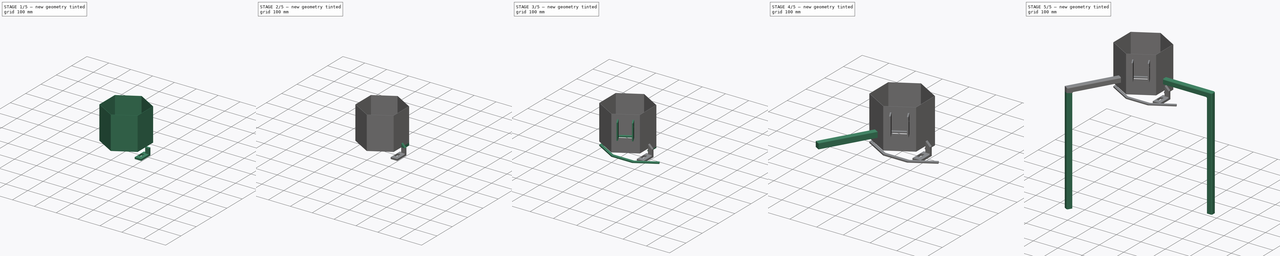
[diagram: build sequence overview — one tinted view per stage of 5, left to right]
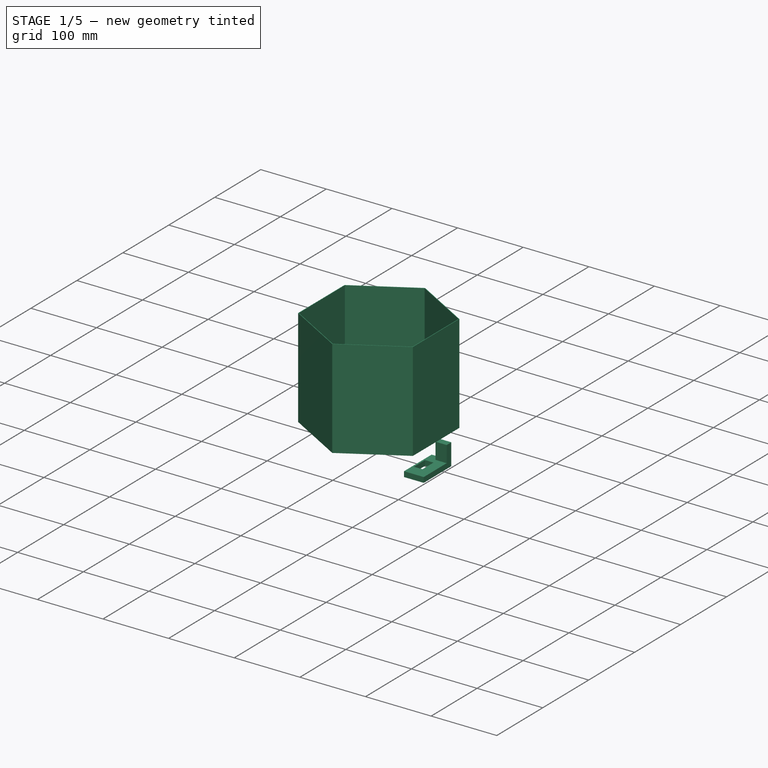
[diagram: stage 1 of 5 — iso view after this stage's code; geometry added in this stage tinted green]
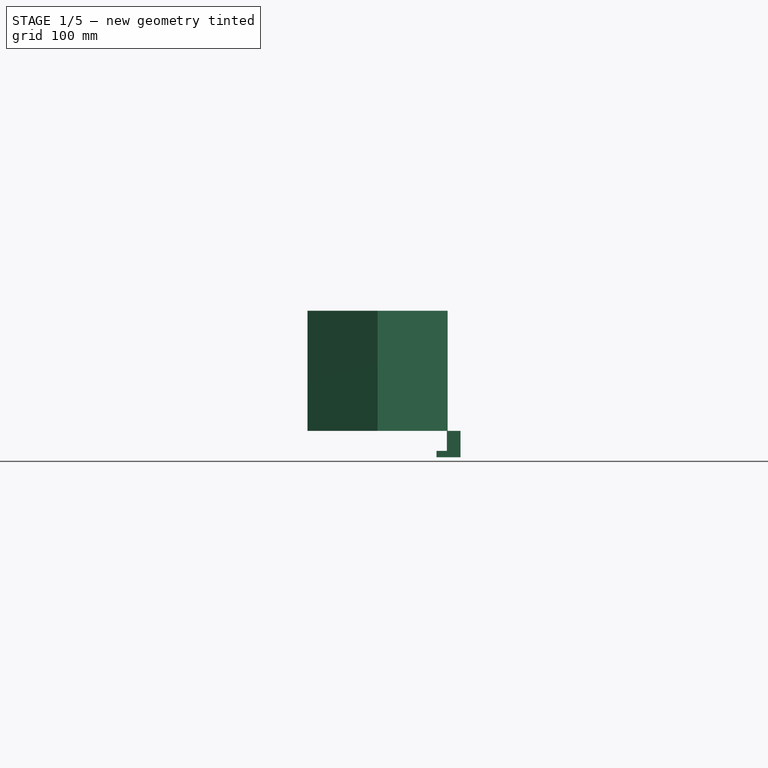
[diagram: stage 1 of 5 — front view after this stage's code; geometry added in this stage tinted green]
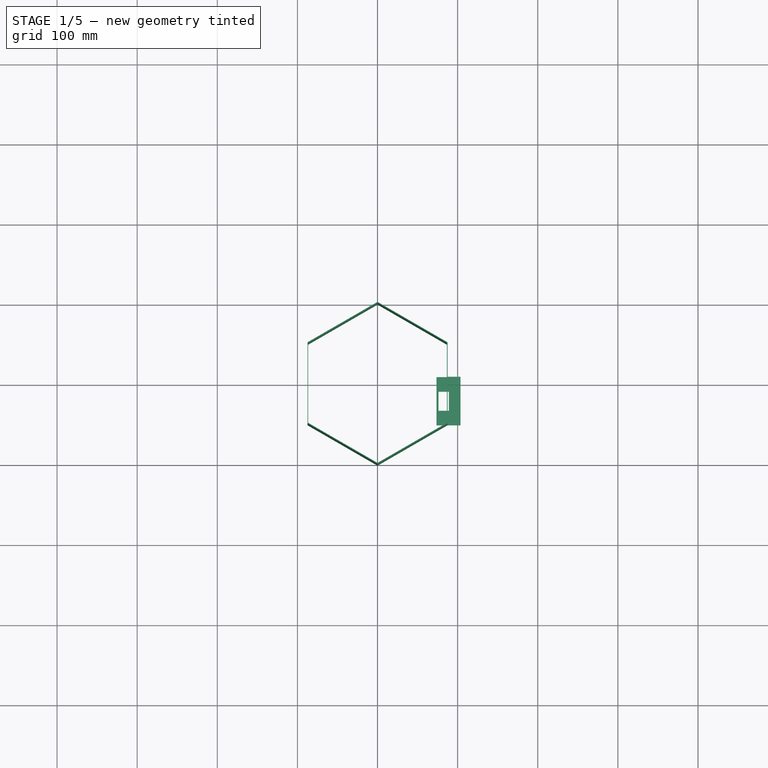
[diagram: stage 1 of 5 — top view after this stage's code; geometry added in this stage tinted green]
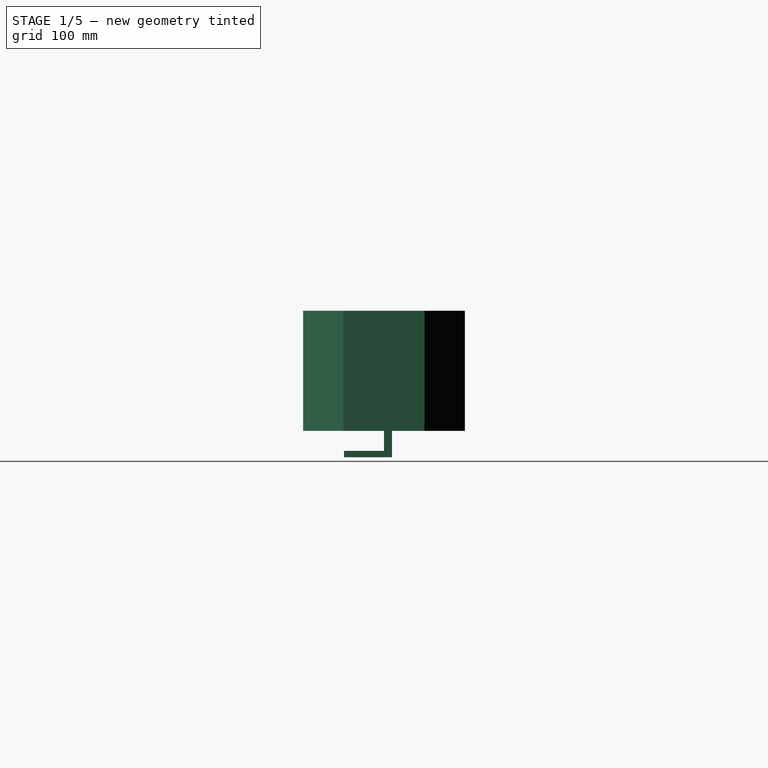
[diagram: stage 1 of 5 — right view after this stage's code; geometry added in this stage tinted green]
FCSTD DOCUMENT  (FreeCAD 0.20R29177 +426 (Git))
Label: ImageRecogBox
License: All rights reserved
LicenseURL: http://en.wikipedia.org/wiki/All_rights_reserved
objects: Sketcher::SketchObject×17, PartDesign::Pad×12, PartDesign::CoordinateSystem×5, PartDesign::Chamfer×4, PartDesign::Pocket×3, PartDesign::Hole×2, PartDesign::Body×1
note: 65 computed .brp shape members not serialized (recipe doc carries the construction recipe); baked Part::Feature solids carry a one-line shape summary decoded from their .brp

FEATURE [Sketcher::SketchObject] Sketch
  FullyConstrained = true
  MapMode = 5
  Support = -> [XY_Plane]
  sketch-geometry (14):
    g0: LineSegment StartX=86.6025 StartY=50 StartZ=0 EndX=0 EndY=100 EndZ=0
    g1: LineSegment StartX=4.3e-15 StartY=100 StartZ=0 EndX=-86.6025 EndY=50 EndZ=0
    g2: LineSegment StartX=-86.6025 StartY=50 StartZ=0 EndX=-86.6025 EndY=-50 EndZ=0
    g3: LineSegment StartX=-86.6025 StartY=-50 StartZ=0 EndX=0 EndY=-100 EndZ=0
    g4: LineSegment StartX=0 StartY=-100 StartZ=0 EndX=86.6025 EndY=-50 EndZ=0
    g5: LineSegment StartX=86.6025 StartY=-50 StartZ=0 EndX=86.6025 EndY=50 EndZ=0
    g6: Circle CenterX=0 CenterY=0 CenterZ=0 NormalX=0 NormalY=0 NormalZ=1 AngleXU=0 Radius=100
    g7: LineSegment StartX=87.4686 StartY=-50.5 StartZ=0 EndX=87.4686 EndY=50.5 EndZ=0
    g8: LineSegment StartX=87.4686 StartY=50.5 StartZ=0 EndX=-1.42e-14 EndY=101 EndZ=0
    g9: LineSegment StartX=-1.48e-14 StartY=101 StartZ=0 EndX=-87.4686 EndY=50.5 EndZ=0
    g10: LineSegment StartX=-87.4686 StartY=50.5 StartZ=0 EndX=-87.4686 EndY=-50.5 EndZ=0
    g11: LineSegment StartX=-87.4686 StartY=-50.5 StartZ=0 EndX=0 EndY=-101 EndZ=0
    g12: LineSegment StartX=0 StartY=-101 StartZ=0 EndX=87.4686 EndY=-50.5 EndZ=0
    g13: Circle CenterX=0 CenterY=0 CenterZ=0 NormalX=0 NormalY=0 NormalZ=1 AngleXU=0 Radius=101
  constraints (33):
    c: Coincident(g0,g1)
    c: Coincident(g1,g2)
    c: Coincident(g2,g3)
    c: Coincident(g3,g4)
    c: Coincident(g4,g5)
    c: Coincident(g5,g0)
    c: Equal(g0, g1-g5) x5
    c: PointOnObject(g0,g6)
    c: PointOnObject(g1,g6)
    c: PointOnObject(g2,g6)
    c: PointOnObject(g3,g6)
    c: PointOnObject(g4,g6)
    c: PointOnObject(g5,g6)
    c: Coincident(g6,g-1)
    c: Vertical(g5)
    c: Coincident(g7,g8)
    c: Coincident(g8,g9)
    c: Coincident(g9,g10)
    c: Coincident(g10,g11)
    c: Coincident(g11,g12)
    c: Coincident(g12,g7)
    c: Equal(g7, g8-g12) x5
    c: PointOnObject(g7,g13)
    c: PointOnObject(g8,g13)
    c: PointOnObject(g9,g13)
    c: PointOnObject(g10,g13)
    c: PointOnObject(g11,g13)
    c: PointOnObject(g12,g13)
    c: Coincident(g13,g6)
    c: Vertical(g7)
    c: Diameter(g6) = 200
    c: DistanceY(g5,g5) = 100
    c: Diameter(g13) = 202
FEATURE [PartDesign::Pad] Pad
  Direction = (0,0,1)
  Length = 150
  Length2 = 10
  Profile = -> Sketch
  ReferenceAxis = -> Sketch [N_Axis]
  Type = 0
FEATURE [Sketcher::SketchObject] Sketch001
  ExternalGeometry = -> [Pad]
  FullyConstrained = true
  MapMode = 5
  Placement = pos=(0,0,0) rot=(1,0,0;3.14159rad)
  Support = -> [Pad]
  sketch-geometry (4):
    g0: LineSegment StartX=103.603 StartY=0 StartZ=0 EndX=86.6025 EndY=0 EndZ=0
    g1: LineSegment StartX=86.6025 StartY=0 StartZ=0 EndX=86.6025 EndY=-10 EndZ=0
    g2: LineSegment StartX=86.6025 StartY=-10 StartZ=0 EndX=103.603 EndY=-10 EndZ=0
    g3: LineSegment StartX=103.603 StartY=-10 StartZ=0 EndX=103.603 EndY=0 EndZ=0
  constraints (12):
    c: Coincident(g0,g1)
    c: Coincident(g1,g2)
    c: Coincident(g2,g3)
    c: Coincident(g3,g0)
    c: Horizontal(g0)
    c: Horizontal(g2)
    c: Vertical(g1)
    c: Vertical(g3)
    c: PointOnObject(g1,g-3)
    c: DistanceX(g2,g2) = 17
    c: DistanceY(g3,g3) = 10
    c: PointOnObject(g0,g-1)
FEATURE [PartDesign::Pad] Pad001
  BaseFeature = -> Pad
  Direction = (0,0,-1)
  Length = 25
  Length2 = 10
  Profile = -> Sketch001
  ReferenceAxis = -> Sketch001 [N_Axis]
  Type = 0
FEATURE [Sketcher::SketchObject] Sketch002
  ExternalGeometry = -> [Pad001]
  FullyConstrained = true
  MapMode = 5
  Placement = pos=(0,0,-25) rot=(1,0,0;3.14159rad)
  Support = -> [Pad001]
  sketch-geometry (4):
    g0: LineSegment StartX=103.603 StartY=-10 StartZ=0 EndX=73.6025 EndY=-10 EndZ=0
    g1: LineSegment StartX=73.6025 StartY=-10 StartZ=0 EndX=73.6025 EndY=50 EndZ=0
    g2: LineSegment StartX=73.6025 StartY=50 StartZ=0 EndX=103.603 EndY=50 EndZ=0
    g3: LineSegment StartX=103.603 StartY=50 StartZ=0 EndX=103.603 EndY=-10 EndZ=0
  constraints (11):
    c: Coincident(g0,g1)
    c: Coincident(g2,g3)
    c: Coincident(g3,g0)
    c: Horizontal(g0)
    c: Vertical(g3)
    c: Coincident(g0,g-4)
    c: Coincident(g2,g1)
    c: Horizontal(g2)
    c: Horizontal(g2,g-6)
    c: Vertical(g1)
    c: DistanceX(g0,g0) = 30
FEATURE [PartDesign::Pad] Pad002
  BaseFeature = -> Pad001
  Direction = (0,0,-1)
  Length = 8
  Length2 = 10
  Profile = -> Sketch002
  ReferenceAxis = -> Sketch002 [N_Axis]
  Type = 0
FEATURE [Sketcher::SketchObject] Sketch003
  ExternalGeometry = -> [Pad002]
  FullyConstrained = true
  MapMode = 5
  Placement = pos=(0,0,-25) rot=(0,0,1;0rad)
  Support = -> [Pad002]
  sketch-geometry (6):
    g0: LineSegment StartX=76.1025 StartY=-8 StartZ=0 EndX=89.1025 EndY=-8 EndZ=0
    g1: LineSegment StartX=89.1025 StartY=-8 StartZ=0 EndX=89.1025 EndY=-32 EndZ=0
    g2: LineSegment StartX=89.1025 StartY=-32 StartZ=0 EndX=76.1025 EndY=-32 EndZ=0
    g3: LineSegment StartX=76.1025 StartY=-32 StartZ=0 EndX=76.1025 EndY=-8 EndZ=0
    g4: GeomPoint X=82.6025 Y=-20 Z=0
    g5: GeomPoint X=88.6025 Y=-20 Z=0
  constraints (14):
    c: Coincident(g0,g1)
    c: Coincident(g1,g2)
    c: Coincident(g2,g3)
    c: Coincident(g3,g0)
    c: Horizontal(g0)
    c: Horizontal(g2)
    c: Vertical(g1)
    c: Vertical(g3)
    c: DistanceY(g1,g1) = 24
    c: DistanceX(g2,g2) = 13
    c: Symmetric(g1,g0,g4)
    c: Symmetric(g-5,g-3,g5)
    c: DistanceX(g4,g5) = 6
    c: Horizontal(g5,g4)
FEATURE [PartDesign::Pocket] Pocket
  BaseFeature = -> Pad002
  Direction = (0,0,-1)
  Length = 19
  Length2 = 5
  Profile = -> Sketch003
  ReferenceAxis = -> Sketch003 [N_Axis]
  Type = 1
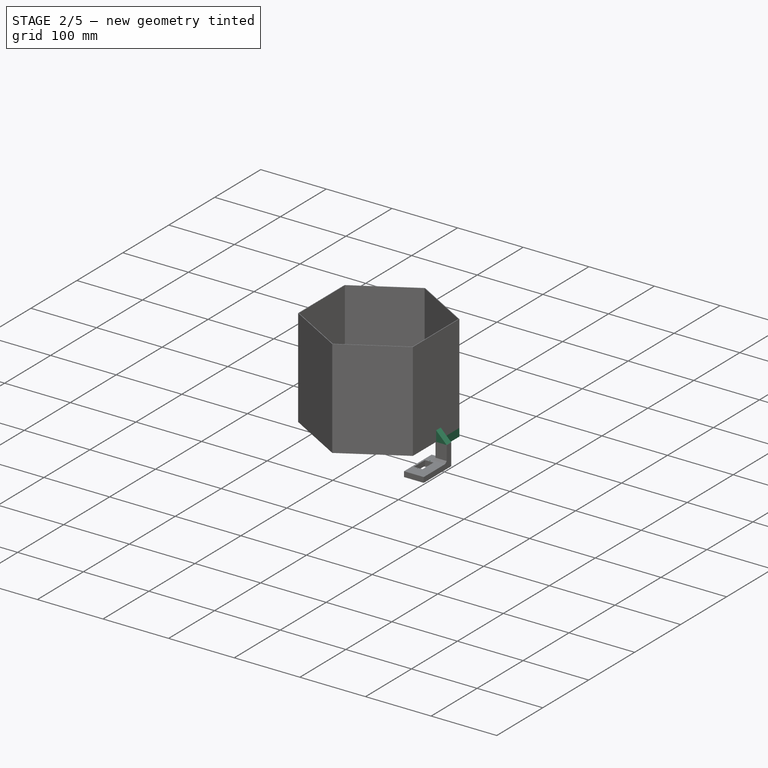
[diagram: stage 2 of 5 — iso view after this stage's code; geometry added in this stage tinted green]
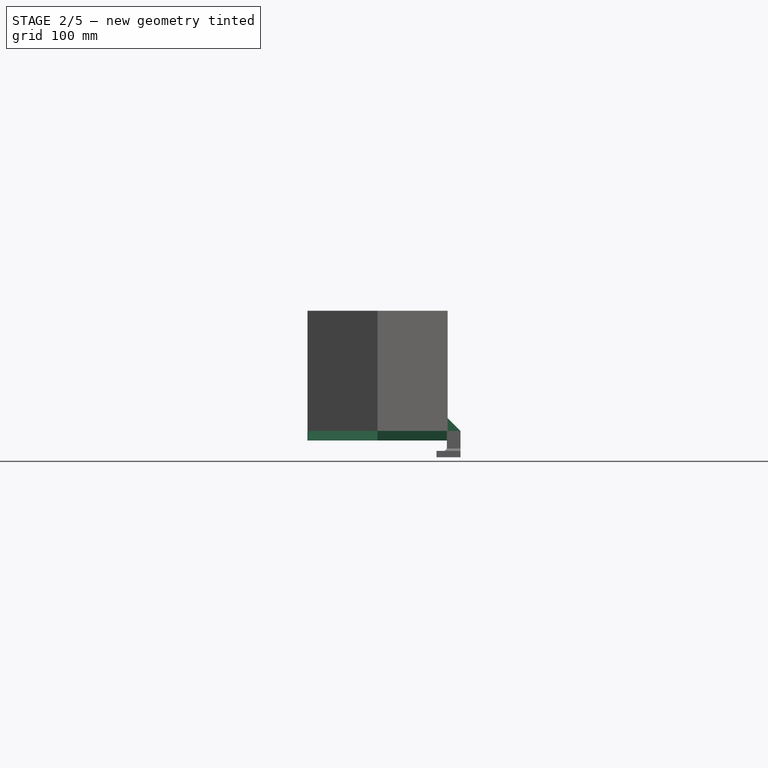
[diagram: stage 2 of 5 — front view after this stage's code; geometry added in this stage tinted green]
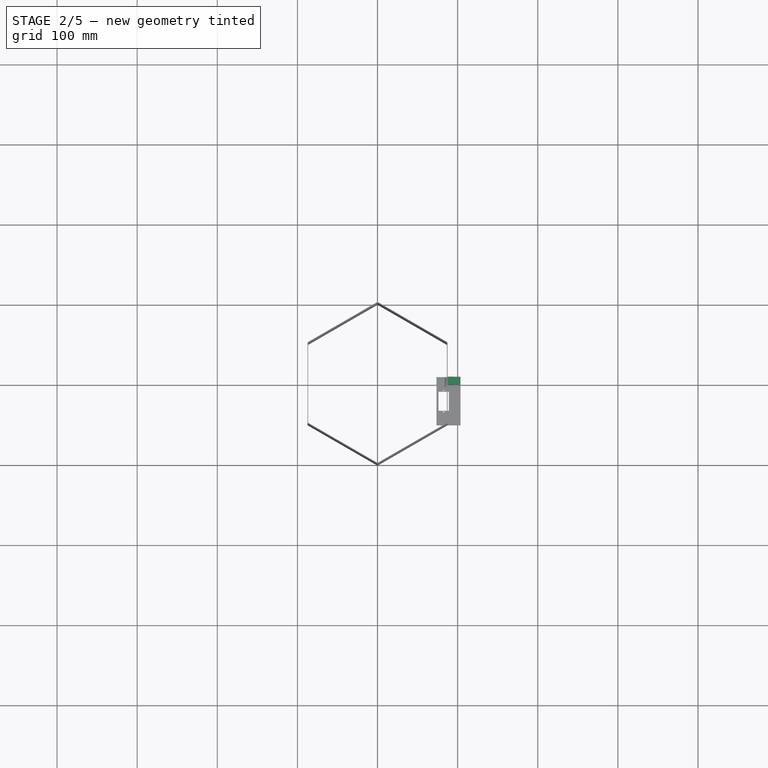
[diagram: stage 2 of 5 — top view after this stage's code; geometry added in this stage tinted green]
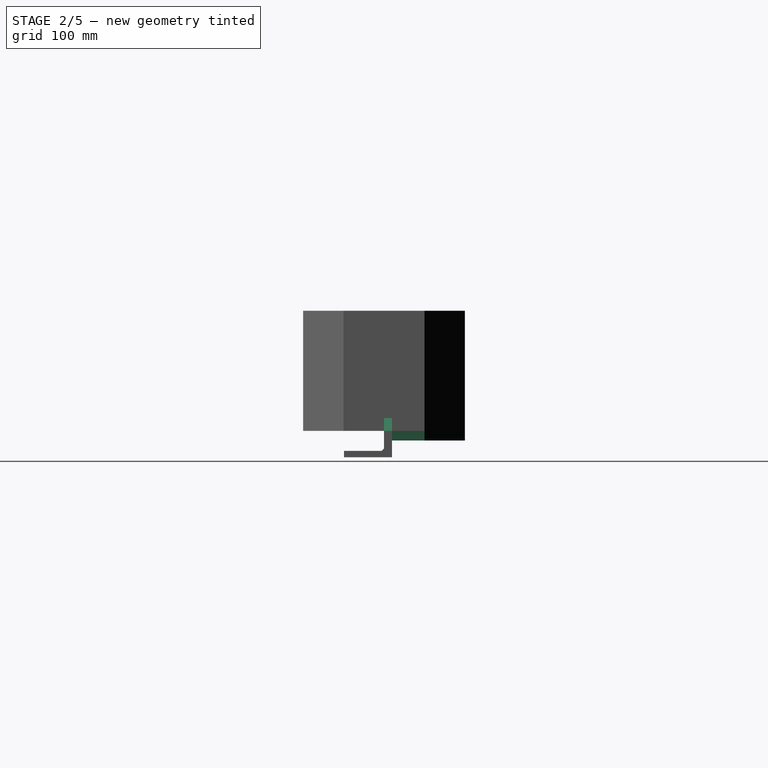
[diagram: stage 2 of 5 — right view after this stage's code; geometry added in this stage tinted green]
FEATURE [Sketcher::SketchObject] Sketch004
  ExternalGeometry = -> [Pocket]
  FullyConstrained = false
  MapMode = 5
  Placement = pos=(0,0,-25) rot=(0,0,1;0rad)
  Support = -> [Pocket]
  sketch-geometry (5):
    g0: GeomPoint X=82.6025 Y=-6.3796 Z=0
    g1: GeomPoint X=82.6025 Y=-33.3796 Z=0
    g2: Circle CenterX=82.6025 CenterY=-6.3796 CenterZ=0 NormalX=0 NormalY=0 NormalZ=1 AngleXU=0 Radius=1
    g3: Circle CenterX=82.6025 CenterY=-33.3796 CenterZ=0 NormalX=0 NormalY=0 NormalZ=1 AngleXU=0 Radius=1
    g4: GeomPoint X=82.6025 Y=-20 Z=0
  constraints (8):
    c: DistanceY(g1,g0) = 27
    c: Coincident(g2,g0)
    c: Coincident(g3,g1)
    c: Equal(g3,g2)
    c: Diameter(g2) = 2
    c: Symmetric(g-6,g-5,g4)
    c: Vertical(g2,g3)
    c: Vertical(g3,g4)
FEATURE [PartDesign::Hole] Hole
  BaseFeature = -> Pocket
  CustomThreadClearance = 0
  Depth = 25
  DepthType = 0
  Diameter = 1.6
  DrillForDepth = false
  DrillPoint = 1
  DrillPointAngle = 118
  HoleCutCountersinkAngle = 90
  HoleCutCustomValues = false
  HoleCutDepth = 0
  HoleCutDiameter = 6.1
  HoleCutType = 0
  ModelThread = false
  Profile = -> Sketch004
  Tapered = false
  TaperedAngle = 90
  ThreadClass = 0
  ThreadDepth = 25
  ThreadDepthType = 0
  ThreadDirection = 0
  ThreadFit = 0
  ThreadSize = 6
  ThreadType = 1
  Threaded = true
  UseCustomThreadClearance = false
FEATURE [PartDesign::CoordinateSystem] LCS_1
  AttacherType = Attacher::AttachEngine3D
  MapMode = 45
  Placement = pos=(82.6025,-6.3796,-25) rot=(0,0,1;0rad)
  Support = -> [Hole]
FEATURE [PartDesign::CoordinateSystem] LCS_2  label="LCS_origin"
  AttacherType = Attacher::AttachEngine3D
FEATURE [PartDesign::Chamfer] Chamfer
  Angle = 45
  Base = -> Hole [Edge4]
  BaseFeature = -> Hole
  ChamferType = 0
  FlipDirection = false
  Size = 16
  Size2 = 1
  SupportTransform = false
  UseAllEdges = false
FEATURE [PartDesign::Chamfer] Chamfer001
  Angle = 45
  Base = -> Chamfer [Edge12,Edge49]
  BaseFeature = -> Chamfer
  ChamferType = 0
  FlipDirection = false
  Size = 3
  Size2 = 1
  SupportTransform = false
  UseAllEdges = false
FEATURE [Sketcher::SketchObject] Sketch005
  ExternalGeometry = -> [Chamfer001]
  FullyConstrained = true
  MapMode = 5
  Placement = pos=(0,0,0) rot=(1,0,0;3.14159rad)
  Support = -> [Chamfer001]
  sketch-geometry (8):
    g0: LineSegment StartX=86.6025 StartY=-10 StartZ=0 EndX=86.6025 EndY=-50 EndZ=0
    g1: LineSegment StartX=86.6025 StartY=-50 StartZ=0 EndX=0 EndY=-100 EndZ=0
    g2: LineSegment StartX=0 StartY=-100 StartZ=0 EndX=-86.6025 EndY=-50 EndZ=0
    g3: LineSegment StartX=-86.6025 StartY=-50 StartZ=0 EndX=-87.4686 EndY=-50.5 EndZ=0
    g4: LineSegment StartX=-87.4686 StartY=-50.5 StartZ=0 EndX=-1.42e-14 EndY=-101 EndZ=0
    g5: LineSegment StartX=-1.42e-14 StartY=-101 StartZ=0 EndX=87.4686 EndY=-50.5 EndZ=0
    g6: LineSegment StartX=87.4686 StartY=-50.5 StartZ=0 EndX=87.4686 EndY=-10 EndZ=0
    g7: LineSegment StartX=87.4686 StartY=-10 StartZ=0 EndX=86.6025 EndY=-10 EndZ=0
  constraints (16):
    c: Coincident(g-7,g0)
    c: Coincident(g0,g-7)
    c: Coincident(g0,g1)
    c: Coincident(g1,g-4)
    c: Coincident(g1,g2)
    c: Coincident(g2,g-3)
    c: Coincident(g2,g3)
    c: Coincident(g3,g-5)
    c: Coincident(g3,g4)
    c: Coincident(g4,g-6)
    c: Coincident(g4,g5)
    c: Coincident(g5,g-8)
    c: Coincident(g5,g6)
    c: Coincident(g6,g-8)
    c: Coincident(g6,g7)
    c: Coincident(g7,g0)
FEATURE [PartDesign::Pad] Pad003
  BaseFeature = -> Chamfer001
  Direction = (0,0,-1)
  Length = 12
  Length2 = 10
  Profile = -> Sketch005
  ReferenceAxis = -> Sketch005 [N_Axis]
  Type = 0
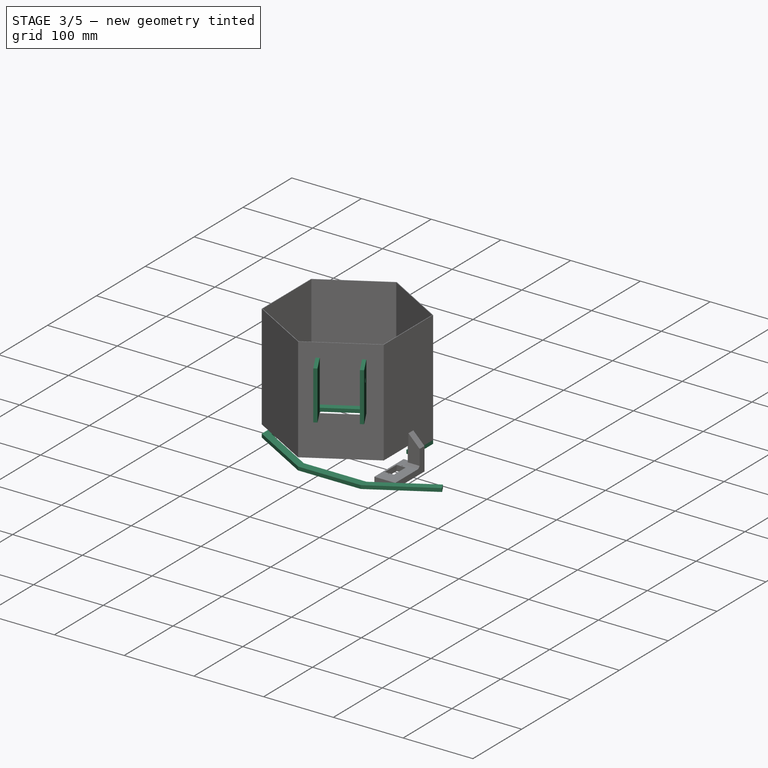
[diagram: stage 3 of 5 — iso view after this stage's code; geometry added in this stage tinted green]
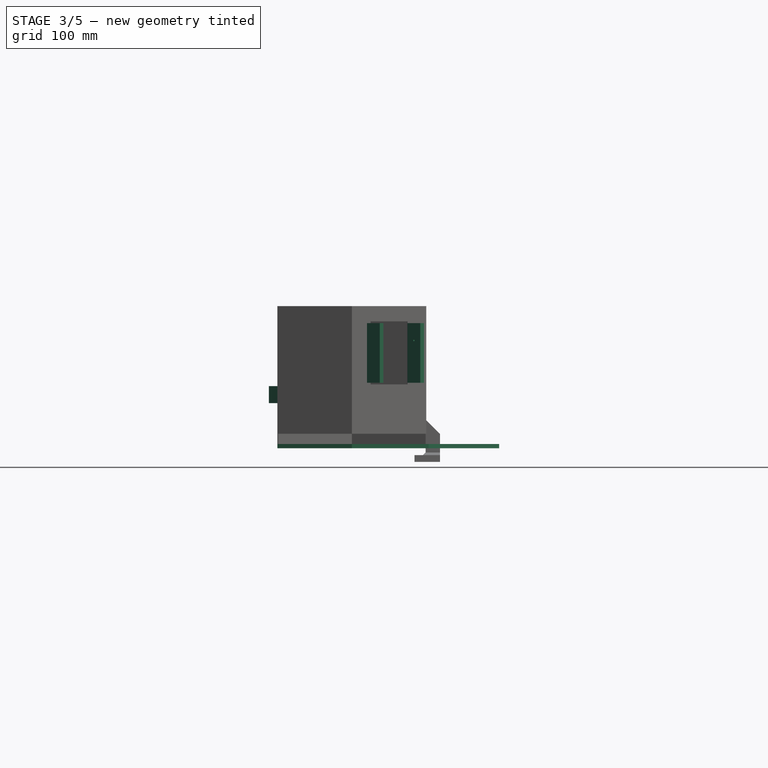
[diagram: stage 3 of 5 — front view after this stage's code; geometry added in this stage tinted green]
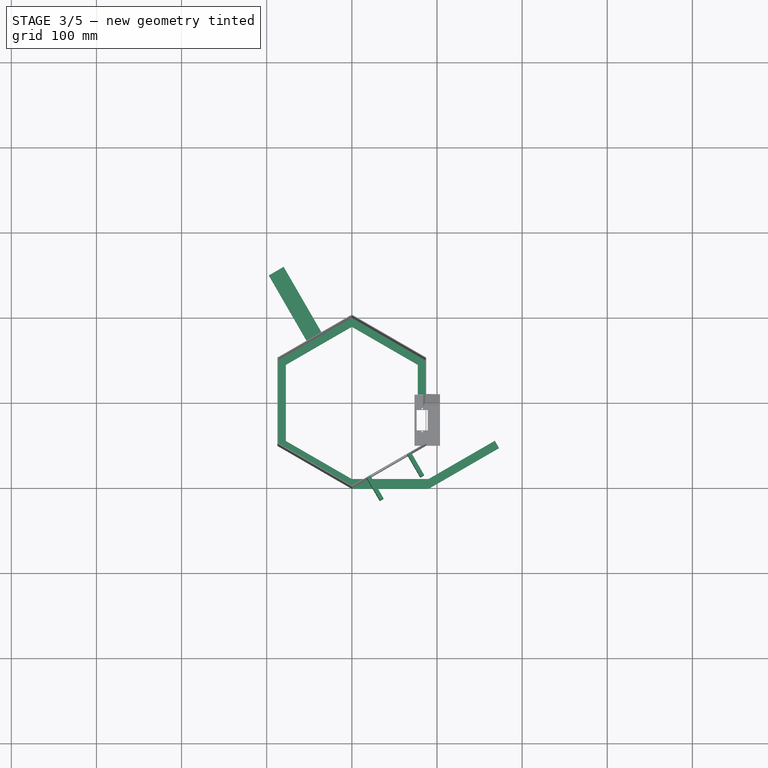
[diagram: stage 3 of 5 — top view after this stage's code; geometry added in this stage tinted green]
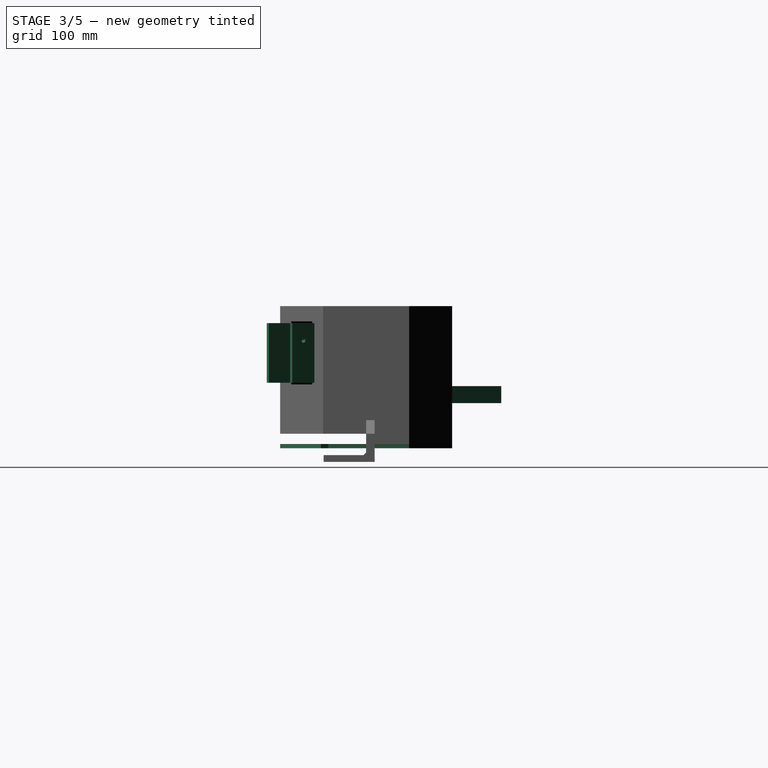
[diagram: stage 3 of 5 — right view after this stage's code; geometry added in this stage tinted green]
FEATURE [Sketcher::SketchObject] Sketch006
  ExternalGeometry = -> [Pad003]
  FullyConstrained = true
  MapMode = 5
  Placement = pos=(0,0,-12) rot=(1,0,0;3.14159rad)
  Support = -> [Pad003]
  sketch-geometry (17):
    g0: LineSegment StartX=87.4686 StartY=-10 StartZ=0 EndX=77.4686 EndY=-10 EndZ=0
    g1: LineSegment StartX=77.4686 StartY=-44.7265 StartZ=0 EndX=77.4686 EndY=-10 EndZ=0
    g2: LineSegment StartX=-77.4686 StartY=44.7265 StartZ=0 EndX=-77.4686 EndY=-44.7265 EndZ=0
    g3: LineSegment StartX=-77.4686 StartY=-44.7265 StartZ=0 EndX=1.42e-14 EndY=-89.453 EndZ=0
    g4: LineSegment StartX=1.42e-14 StartY=-89.453 StartZ=0 EndX=77.4686 EndY=-44.7265 EndZ=0
    g5: Circle CenterX=0 CenterY=0 CenterZ=0 NormalX=0 NormalY=0 NormalZ=1 AngleXU=0 Radius=89.453
    g6: LineSegment StartX=87.4686 StartY=-10 StartZ=0 EndX=87.4686 EndY=-50.5 EndZ=0
    g7: LineSegment StartX=87.4686 StartY=-50.5 StartZ=0 EndX=0 EndY=-101 EndZ=0
    g8: LineSegment StartX=0 StartY=-101 StartZ=0 EndX=-87.4686 EndY=-50.5 EndZ=0
    g9: LineSegment StartX=-87.4686 StartY=-50.5 StartZ=0 EndX=-87.4686 EndY=50.5 EndZ=0
    g10: LineSegment StartX=-87.4686 StartY=50.5 StartZ=0 EndX=1.42e-14 EndY=101 EndZ=0
    g11: LineSegment StartX=1.42e-14 StartY=101 StartZ=0 EndX=90 EndY=101 EndZ=0
    g12: LineSegment StartX=90 StartY=101 StartZ=0 EndX=172.942 EndY=53.1132 EndZ=0
    g13: LineSegment StartX=-77.4686 StartY=44.7265 StartZ=0 EndX=0 EndY=89.453 EndZ=0
    g14: LineSegment StartX=0 StartY=89.453 StartZ=0 EndX=90 EndY=89.453 EndZ=0
    g15: LineSegment StartX=90 StartY=89.453 StartZ=0 EndX=167.942 EndY=44.453 EndZ=0
    g16: LineSegment StartX=172.942 StartY=53.1132 StartZ=0 EndX=167.942 EndY=44.453 EndZ=0
  constraints (44):
    c: Coincident(g-3,g0)
    c: Horizontal(g0)
    c: DistanceX(g0,g0) = 10
    c: Coincident(g2,g3)
    c: Coincident(g3,g4)
    c: Coincident(g4,g1)
    c: PointOnObject(g2,g5)
    c: PointOnObject(g2,g5)
    c: PointOnObject(g3,g5)
    c: PointOnObject(g4,g5)
    c: Coincident(g5,g-1)
    c: Vertical(g1)
    c: Coincident(g6,g0)
    c: Coincident(g6,g-4)
    c: Coincident(g7,g6)
    c: Coincident(g7,g-5)
    c: Coincident(g8,g7)
    c: Coincident(g8,g-6)
    c: Coincident(g9,g8)
    c: Coincident(g9,g-6)
    c: Coincident(g1,g0)
    c: Parallel(g-8,g4)
    c: Parallel(g3,g-9)
    c: Vertical(g2)
    c: DistanceX(g8,g2) = 10
    c: Coincident(g10,g9)
    c: Coincident(g10,g-11)
    c: Coincident(g11,g10)
    c: Horizontal(g11)
    c: Coincident(g12,g11)
    c: Parallel(g12,g3)
    c: Coincident(g13,g2)
    c: PointOnObject(g13,g5)
    c: Parallel(g13,g10)
    c: Coincident(g14,g13)
    c: Horizontal(g14)
    c: Vertical(g14,g11)
    c: DistanceX(g14,g14) = 90
    c: Coincident(g15,g14)
    c: Coincident(g16,g12)
    c: Coincident(g16,g15)
    c: Parallel(g15,g12)
    c: Perpendicular(g12,g16)
    c: Distance(g15) = 90
FEATURE [PartDesign::Pad] Pad004
  BaseFeature = -> Pad003
  Direction = (0,0,-1)
  Length = 5
  Length2 = 10
  Profile = -> Sketch006
  ReferenceAxis = -> Sketch006 [N_Axis]
  Type = 0
FEATURE [Sketcher::SketchObject] Sketch007
  ExternalGeometry = -> [Pad004]
  FullyConstrained = true
  MapMode = 5
  Placement = pos=(43.7343,-75.75,0) rot=(0.935113,0.250563,0.250563;1.63783rad)
  Support = -> [Pad004]
  sketch-geometry (5):
    g0: LineSegment StartX=-30 StartY=130 StartZ=0 EndX=30 EndY=130 EndZ=0
    g1: LineSegment StartX=30 StartY=130 StartZ=0 EndX=30 EndY=60 EndZ=0
    g2: LineSegment StartX=30 StartY=60 StartZ=0 EndX=-30 EndY=60 EndZ=0
    g3: LineSegment StartX=-30 StartY=60 StartZ=0 EndX=-30 EndY=130 EndZ=0
    g4: GeomPoint X=0 Y=130 Z=0
  constraints (13):
    c: Coincident(g0,g1)
    c: Coincident(g1,g2)
    c: Coincident(g2,g3)
    c: Coincident(g3,g0)
    c: Horizontal(g0)
    c: Horizontal(g2)
    c: Vertical(g1)
    c: Vertical(g3)
    c: PointOnObject(g4,g-2)
    c: Symmetric(g0,g0,g4)
    c: DistanceX(g0,g0) = 60
    c: DistanceY(g0,g-3) = 20
    c: DistanceY(g1,g1) = 70
FEATURE [PartDesign::Pad] Pad005
  BaseFeature = -> Pad004
  Direction = (0.5,-0.866025,0)
  Length = 30
  Length2 = 10
  Profile = -> Sketch007
  ReferenceAxis = -> Sketch007 [N_Axis]
  Type = 0
FEATURE [Sketcher::SketchObject] Sketch008
  ExternalGeometry = -> [Pad005]
  FullyConstrained = true
  MapMode = 5
  Placement = pos=(43.3013,-75,0) rot=(-0.186157,0.694747,0.694747;3.50969rad)
  Support = -> [Pad005]
  sketch-geometry (4):
    g0: LineSegment StartX=-25 StartY=58 StartZ=0 EndX=25 EndY=58 EndZ=0
    g1: LineSegment StartX=25 StartY=58 StartZ=0 EndX=25 EndY=132 EndZ=0
    g2: LineSegment StartX=25 StartY=132 StartZ=0 EndX=-25 EndY=132 EndZ=0
    g3: LineSegment StartX=-25 StartY=132 StartZ=0 EndX=-25 EndY=58 EndZ=0
  constraints (12):
    c: Coincident(g0,g1)
    c: Coincident(g1,g2)
    c: Coincident(g2,g3)
    c: Coincident(g3,g0)
    c: Horizontal(g0)
    c: Horizontal(g2)
    c: Vertical(g1)
    c: Vertical(g3)
    c: DistanceY(g-4,g1) = 2
    c: DistanceX(g1,g-4) = 5
    c: DistanceX(g-5,g2) = 5
    c: DistanceY(g0,g-6) = 2
FEATURE [PartDesign::Pocket] Pocket001
  BaseFeature = -> Pad005
  Direction = (0.5,-0.866025,-1e-16)
  Length = 5
  Length2 = 5
  Profile = -> Sketch008
  ReferenceAxis = -> Sketch008 [N_Axis]
  Type = 1
FEATURE [Sketcher::SketchObject] Sketch009
  ExternalGeometry = -> [Pocket001]
  FullyConstrained = true
  MapMode = 5
  Placement = pos=(25.9808,15,0) rot=(0.377964,0.654654,0.654654;2.41886rad)
  Support = -> [Pocket001]
  sketch-geometry (2):
    g0: Circle CenterX=-102.469 CenterY=110 CenterZ=0 NormalX=0 NormalY=0 NormalZ=1 AngleXU=0 Radius=3
    g1: GeomPoint X=-102.469 Y=130 Z=0
  constraints (4):
    c: Diameter(g0) = 6
    c: Symmetric(g-3,g-4,g1)
    c: Vertical(g1,g0)
    c: DistanceY(g0,g1) = 20
FEATURE [PartDesign::Hole] Hole001
  BaseFeature = -> Pocket001
  CustomThreadClearance = 0
  Depth = 25
  DepthType = 0
  Diameter = 2.5
  DrillForDepth = false
  DrillPoint = 1
  DrillPointAngle = 118
  HoleCutCountersinkAngle = 90
  HoleCutCustomValues = false
  HoleCutDepth = 0
  HoleCutDiameter = 6.1
  HoleCutType = 2
  ModelThread = false
  Profile = -> Sketch009
  Tapered = false
  TaperedAngle = 90
  ThreadClass = 0
  ThreadDepth = 25
  ThreadDepthType = 0
  ThreadDirection = 0
  ThreadFit = 0
  ThreadSize = 9
  ThreadType = 1
  Threaded = true
  UseCustomThreadClearance = false
FEATURE [PartDesign::CoordinateSystem] LCS_cam
  AttacherType = Attacher::AttachEngine3D
  AttachmentOffset = pos=(0,0,0) rot=(-0.766044,-0.642788,0;3.14159rad)
  MapMode = 45
  Placement = pos=(72.8849,-76.2404,110) rot=(0.754536,-0.528332,-0.389282;1.75037rad)
  Support = -> [Hole001]
FEATURE [Sketcher::SketchObject] Sketch010
  FullyConstrained = true
  MapMode = 5
  Placement = pos=(-43.7343,75.75,0) rot=(-0.186157,0.694747,0.694747;3.50969rad)
  Support = -> [Hole001]
  sketch-geometry (5):
    g0: LineSegment StartX=10 StartY=56 StartZ=0 EndX=10 EndY=36 EndZ=0
    g1: LineSegment StartX=10 StartY=36 StartZ=0 EndX=-10 EndY=36 EndZ=0
    g2: LineSegment StartX=-10 StartY=36 StartZ=0 EndX=-10 EndY=56 EndZ=0
    g3: LineSegment StartX=-10 StartY=56 StartZ=0 EndX=10 EndY=56 EndZ=0
    g4: GeomPoint X=0 Y=46 Z=0
  constraints (13):
    c: Coincident(g0,g1)
    c: Coincident(g1,g2)
    c: Coincident(g2,g3)
    c: Coincident(g3,g0)
    c: Horizontal(g1)
    c: Horizontal(g3)
    c: Vertical(g0)
    c: Vertical(g2)
    c: Symmetric(g1,g0,g4)
    c: PointOnObject(g4,g-2)
    c: DistanceX(g1,g1) = 20
    c: DistanceY(g0,g0) = 20
    c: DistanceY(g-1,g0) = 36
FEATURE [PartDesign::Pad] Pad006
  BaseFeature = -> Hole001
  Direction = (-0.5,0.866025,1e-16)
  Length = 90
  Length2 = 10
  Profile = -> Sketch010
  ReferenceAxis = -> Sketch010 [N_Axis]
  Type = 0
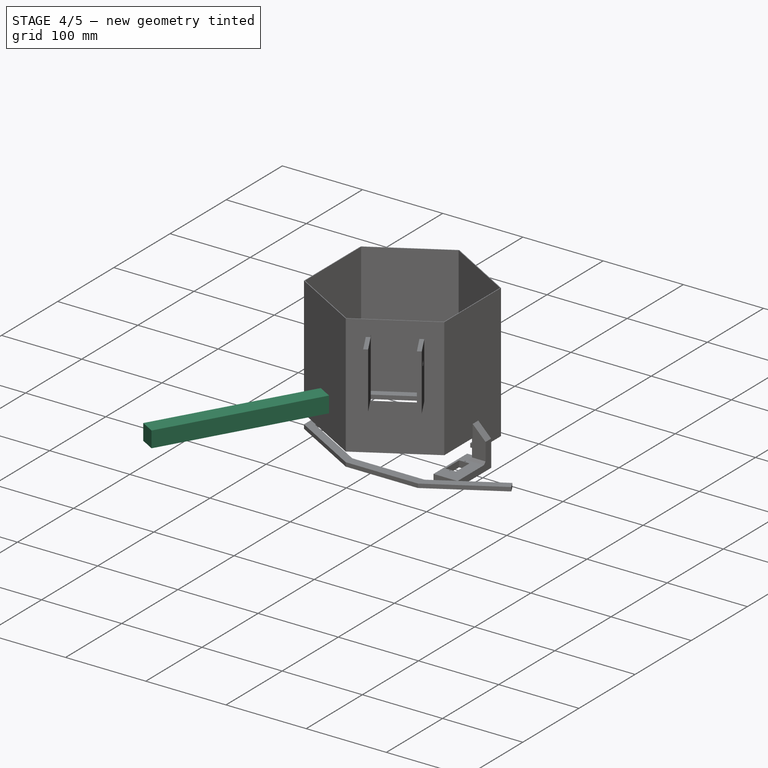
[diagram: stage 4 of 5 — iso view after this stage's code; geometry added in this stage tinted green]
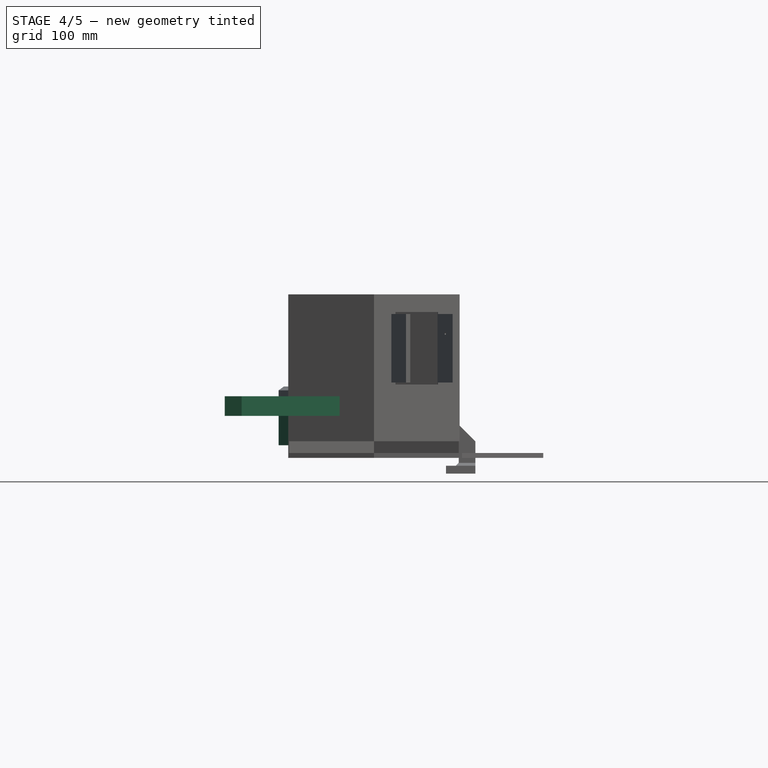
[diagram: stage 4 of 5 — front view after this stage's code; geometry added in this stage tinted green]
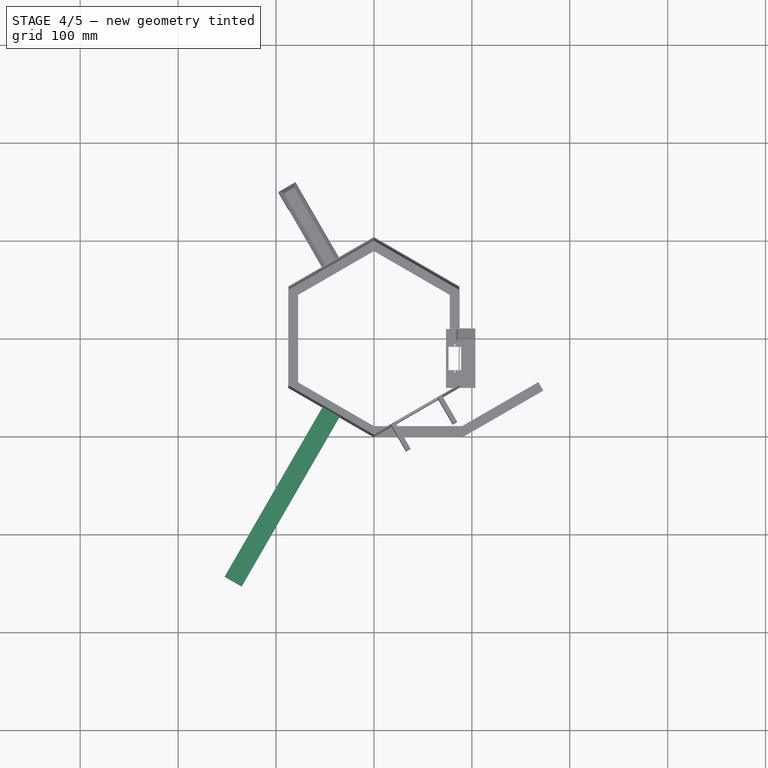
[diagram: stage 4 of 5 — top view after this stage's code; geometry added in this stage tinted green]
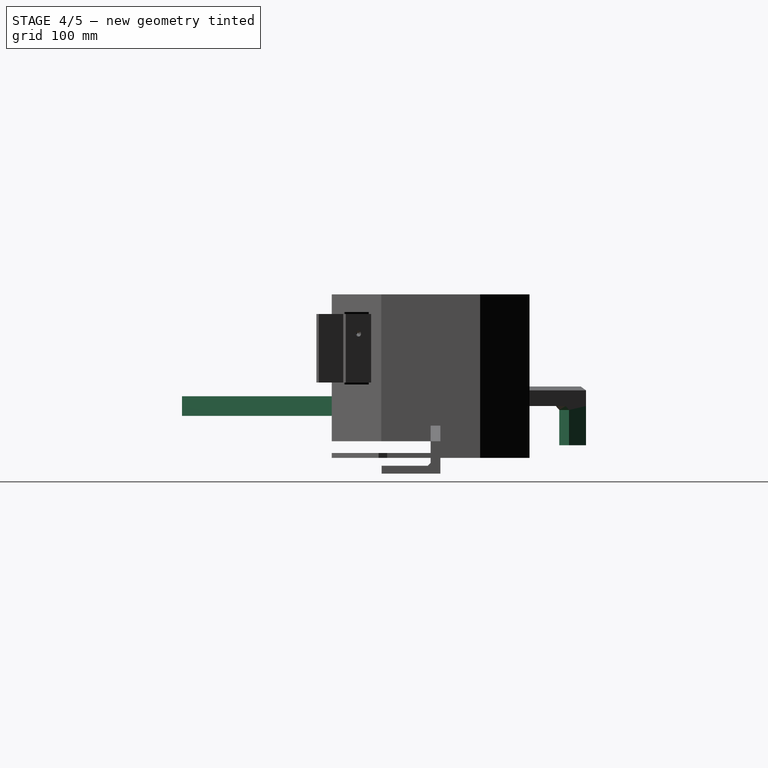
[diagram: stage 4 of 5 — right view after this stage's code; geometry added in this stage tinted green]
FEATURE [Sketcher::SketchObject] Sketch011
  ExternalGeometry = -> [Pad006]
  FullyConstrained = true
  MapMode = 5
  Placement = pos=(2.2e-15,-3.6e-15,36) rot=(1,0,0;3.14159rad)
  Support = -> [Pad006]
  sketch-geometry (4):
    g0: LineSegment StartX=-97.3945 StartY=-148.692 StartZ=0 EndX=-87.3945 EndY=-131.372 EndZ=0
    g1: LineSegment StartX=-87.3945 StartY=-131.372 StartZ=0 EndX=-70.074 EndY=-141.372 EndZ=0
    g2: LineSegment StartX=-70.074 StartY=-141.372 StartZ=0 EndX=-80.074 EndY=-158.692 EndZ=0
    g3: LineSegment StartX=-80.074 StartY=-158.692 StartZ=0 EndX=-97.3945 EndY=-148.692 EndZ=0
  constraints (10):
    c: Coincident(g-5,g0)
    c: PointOnObject(g0,g-4)
    c: Coincident(g0,g1)
    c: PointOnObject(g1,g-3)
    c: Coincident(g1,g2)
    c: Coincident(g2,g-5)
    c: Coincident(g2,g3)
    c: Coincident(g3,g0)
    c: Perpendicular(g2,g1)
    c: Equal(g2,g3)
FEATURE [PartDesign::Pad] Pad007
  BaseFeature = -> Pad006
  Direction = (-1e-16,1e-16,-1)
  Length = 40
  Length2 = 10
  Profile = -> Sketch011
  ReferenceAxis = -> Sketch011 [N_Axis]
  Type = 0
FEATURE [Sketcher::SketchObject] Sketch012
  ExternalGeometry = -> [Pad007]
  FullyConstrained = true
  MapMode = 5
  Placement = pos=(-7e-16,1.2e-15,-4) rot=(1,0,0;3.14159rad)
  Support = -> [Pad007]
  sketch-geometry (1):
    g0: Circle CenterX=-83.7343 CenterY=-145.032 CenterZ=0 NormalX=0 NormalY=0 NormalZ=1 AngleXU=0 Radius=3
  constraints (2):
    c: Diameter(g0) = 6
    c: Symmetric(g-5,g-6,g0)
FEATURE [PartDesign::Pocket] Pocket002
  BaseFeature = -> Pad007
  Direction = (2e-16,-3e-16,1)
  Length = 20
  Length2 = 5
  Profile = -> Sketch012
  ReferenceAxis = -> Sketch012 [N_Axis]
  Type = 0
FEATURE [PartDesign::Chamfer] Chamfer002
  Angle = 45
  Base = -> Pocket002 [Edge200,Edge207,Edge209,Edge205]
  BaseFeature = -> Pocket002
  ChamferType = 0
  FlipDirection = false
  Size = 4
  Size2 = 1
  SupportTransform = false
  UseAllEdges = false
FEATURE [PartDesign::CoordinateSystem] LCS_forRod
  AttacherType = Attacher::AttachEngine3D
  AttachmentOffset = pos=(0,0,0) rot=(0,0,1;0.523599rad)
  MapMode = 45
  Placement = pos=(-83.7343,145.032,16) rot=(0,0,1;0.523648rad)
  Support = -> [Chamfer002]
FEATURE [Sketcher::SketchObject] Sketch013
  FullyConstrained = true
  MapMode = 5
  Placement = pos=(-43.7343,-75.75,0) rot=(0.935113,-0.250563,-0.250563;1.63783rad)
  Support = -> [Chamfer002]
  sketch-geometry (5):
    g0: LineSegment StartX=10 StartY=46 StartZ=0 EndX=10 EndY=26 EndZ=0
    g1: LineSegment StartX=10 StartY=26 StartZ=0 EndX=-10 EndY=26 EndZ=0
    g2: LineSegment StartX=-10 StartY=26 StartZ=0 EndX=-10 EndY=46 EndZ=0
    g3: LineSegment StartX=-10 StartY=46 StartZ=0 EndX=10 EndY=46 EndZ=0
    g4: GeomPoint X=0 Y=36 Z=0
  constraints (13):
    c: Coincident(g0,g1)
    c: Coincident(g1,g2)
    c: Coincident(g2,g3)
    c: Coincident(g3,g0)
    c: Horizontal(g1)
    c: Horizontal(g3)
    c: Vertical(g0)
    c: Vertical(g2)
    c: Symmetric(g1,g0,g4)
    c: PointOnObject(g4,g-2)
    c: DistanceY(g0,g0) = 20
    c: Equal(g3,g0)
    c: DistanceY(g-1,g4) = 36
FEATURE [PartDesign::Pad] Pad008
  BaseFeature = -> Chamfer002
  Direction = (-0.5,-0.866025,-1e-16)
  Length = 200
  Length2 = 10
  Profile = -> Sketch013
  ReferenceAxis = -> Sketch013 [N_Axis]
  Type = 0
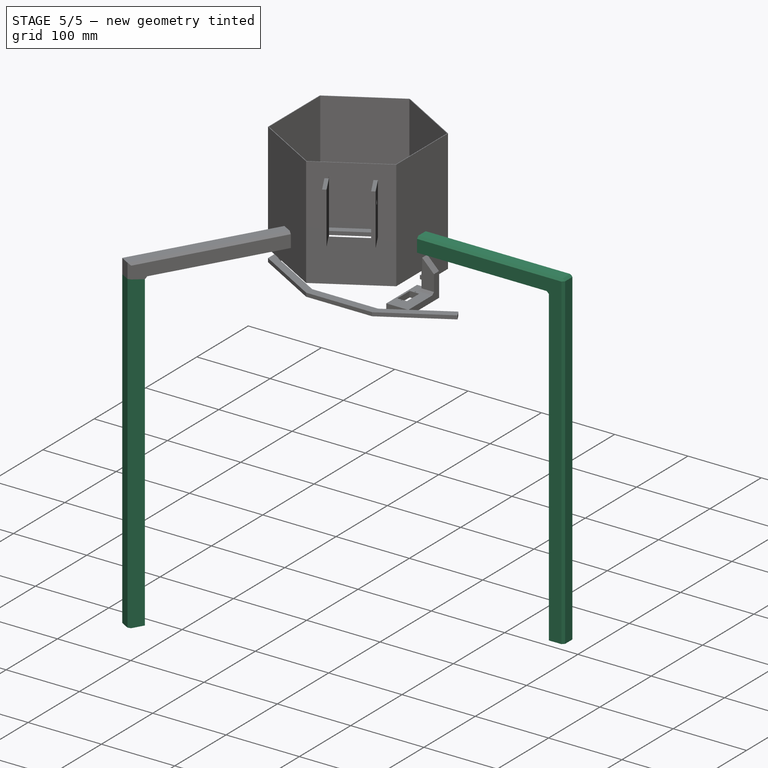
[diagram: stage 5 of 5 — iso view after this stage's code; geometry added in this stage tinted green]
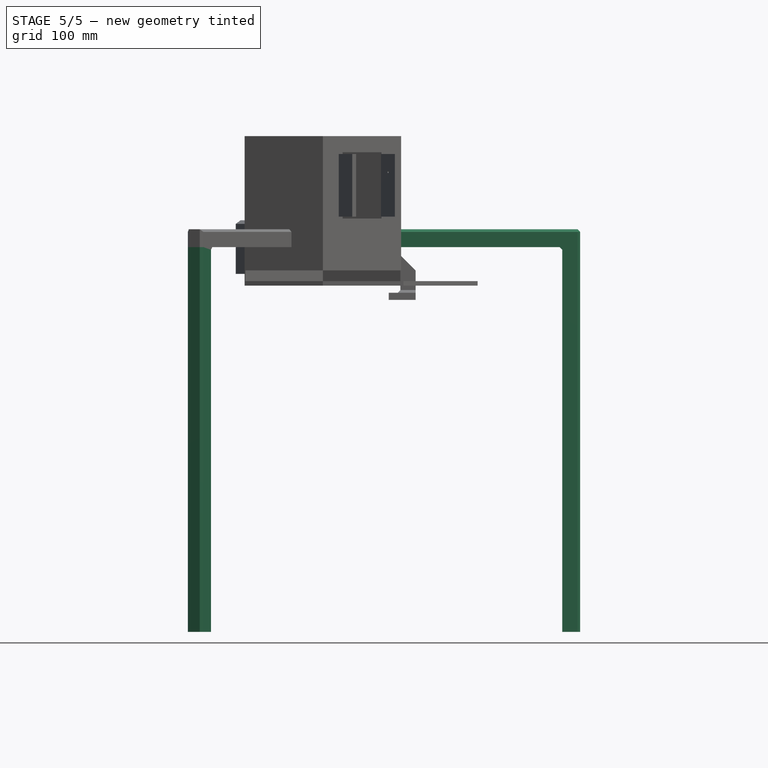
[diagram: stage 5 of 5 — front view after this stage's code; geometry added in this stage tinted green]
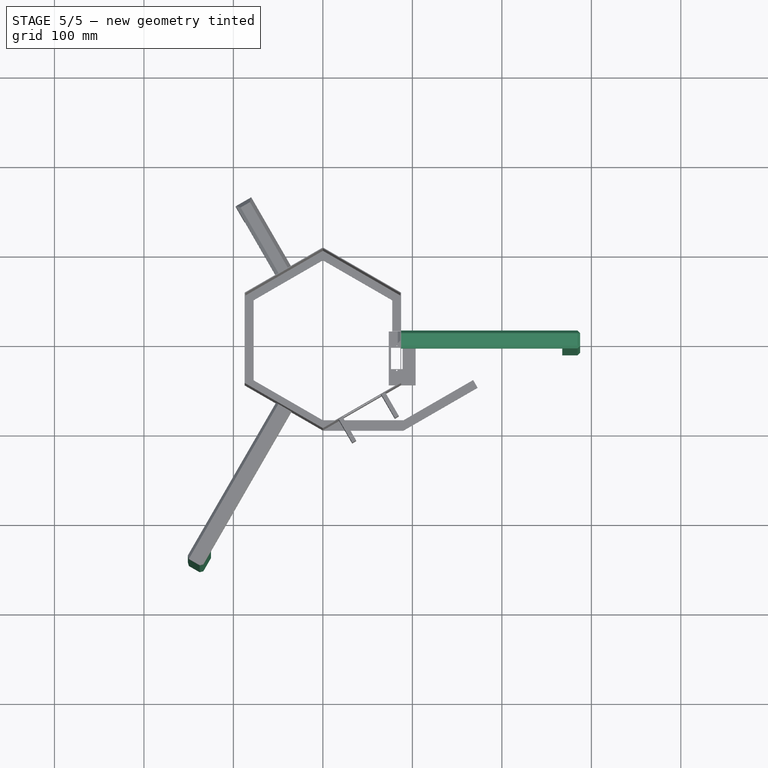
[diagram: stage 5 of 5 — top view after this stage's code; geometry added in this stage tinted green]
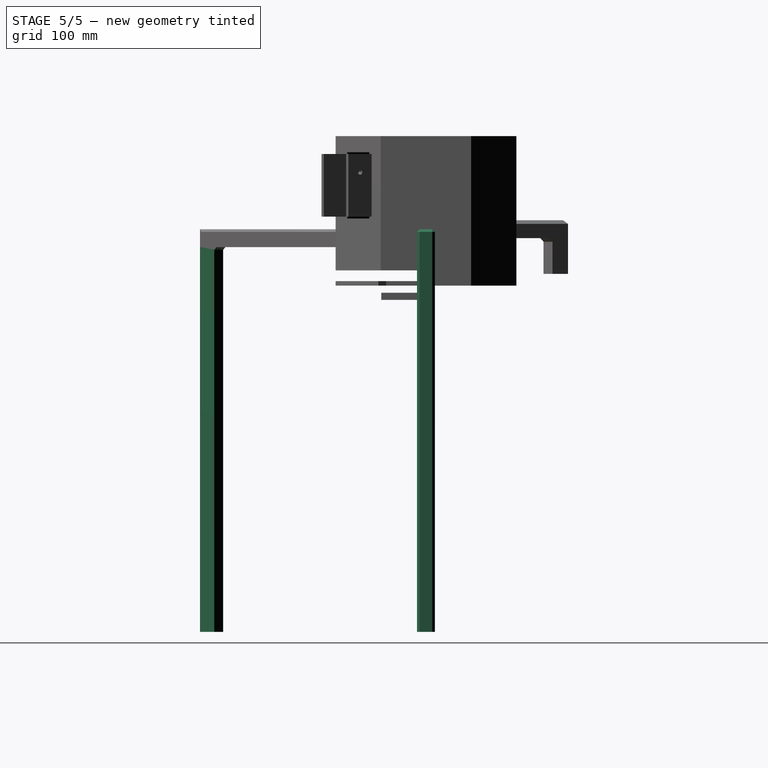
[diagram: stage 5 of 5 — right view after this stage's code; geometry added in this stage tinted green]
FEATURE [Sketcher::SketchObject] Sketch014
  ExternalGeometry = -> [Pad008]
  FullyConstrained = true
  MapMode = 5
  Placement = pos=(-1.6e-15,-2.6e-15,26) rot=(1,0,0;3.14159rad)
  Support = -> [Pad008]
  sketch-geometry (4):
    g0: LineSegment StartX=-152.395 StartY=243.955 StartZ=0 EndX=-135.074 EndY=253.955 EndZ=0
    g1: LineSegment StartX=-135.074 StartY=253.955 StartZ=0 EndX=-125.074 EndY=236.635 EndZ=0
    g2: LineSegment StartX=-125.074 StartY=236.635 StartZ=0 EndX=-142.395 EndY=226.635 EndZ=0
    g3: LineSegment StartX=-142.395 StartY=226.635 StartZ=0 EndX=-152.395 EndY=243.955 EndZ=0
  constraints (10):
    c: Coincident(g-4,g0)
    c: Coincident(g0,g-5)
    c: Coincident(g0,g1)
    c: PointOnObject(g1,g-5)
    c: Coincident(g1,g2)
    c: PointOnObject(g2,g-4)
    c: Coincident(g2,g3)
    c: Coincident(g3,g0)
    c: Perpendicular(g1,g2)
    c: Equal(g1,g0)
FEATURE [PartDesign::Pad] Pad009
  BaseFeature = -> Pad008
  Direction = (1e-16,1e-16,-1)
  Length = 430
  Length2 = 10
  Profile = -> Sketch014
  ReferenceAxis = -> Sketch014 [N_Axis]
  Type = 0
FEATURE [Sketcher::SketchObject] Sketch015
  FullyConstrained = true
  MapMode = 5
  Placement = pos=(87.4686,0,0) rot=(0.57735,0.57735,0.57735;2.0944rad)
  Support = -> [Pad009]
  sketch-geometry (5):
    g0: LineSegment StartX=-10 StartY=46 StartZ=0 EndX=-10 EndY=26 EndZ=0
    g1: LineSegment StartX=-10 StartY=26 StartZ=0 EndX=10 EndY=26 EndZ=0
    g2: LineSegment StartX=10 StartY=26 StartZ=0 EndX=10 EndY=46 EndZ=0
    g3: LineSegment StartX=10 StartY=46 StartZ=0 EndX=-10 EndY=46 EndZ=0
    g4: GeomPoint X=0 Y=36 Z=0
  constraints (13):
    c: Coincident(g0,g1)
    c: Coincident(g1,g2)
    c: Coincident(g2,g3)
    c: Coincident(g3,g0)
    c: Horizontal(g1)
    c: Horizontal(g3)
    c: Vertical(g0)
    c: Vertical(g2)
    c: Symmetric(g1,g0,g4)
    c: PointOnObject(g4,g-2)
    c: DistanceY(g2,g2) = 20
    c: Equal(g3,g2)
    c: DistanceY(g-1,g4) = 36
FEATURE [PartDesign::Pad] Pad010
  BaseFeature = -> Pad009
  Direction = (1,0,0)
  Length = 200
  Length2 = 10
  Profile = -> Sketch015
  ReferenceAxis = -> Sketch015 [N_Axis]
  Type = 0
FEATURE [Sketcher::SketchObject] Sketch016
  ExternalGeometry = -> [Pad010]
  FullyConstrained = true
  MapMode = 5
  Placement = pos=(0,0,26) rot=(1,0,0;3.14159rad)
  Support = -> [Pad010]
  sketch-geometry (4):
    g0: LineSegment StartX=287.469 StartY=10 StartZ=0 EndX=287.469 EndY=-10 EndZ=0
    g1: LineSegment StartX=287.469 StartY=-10 StartZ=0 EndX=267.469 EndY=-10 EndZ=0
    g2: LineSegment StartX=267.469 StartY=-10 StartZ=0 EndX=267.469 EndY=10 EndZ=0
    g3: LineSegment StartX=267.469 StartY=10 StartZ=0 EndX=287.469 EndY=10 EndZ=0
  constraints (10):
    c: Coincident(g-4,g0)
    c: Coincident(g0,g-5)
    c: Coincident(g0,g1)
    c: PointOnObject(g1,g-5)
    c: Coincident(g1,g2)
    c: PointOnObject(g2,g-4)
    c: Vertical(g2)
    c: Coincident(g2,g3)
    c: Coincident(g3,g0)
    c: Equal(g0,g3)
FEATURE [PartDesign::Pad] Pad011
  BaseFeature = -> Pad010
  Direction = (0,0,-1)
  Length = 430
  Length2 = 10
  Profile = -> Sketch016
  ReferenceAxis = -> Sketch016 [N_Axis]
  Type = 0
FEATURE [PartDesign::Chamfer] Chamfer003
  Angle = 45
  Base = -> Pad011 [Edge134,Edge132,Edge133,Edge138,Edge226,Edge137,Edge141,Edge231,Edge183,Edge176,Edge181,Edge244,Edge179,Edge184,Edge250]
  BaseFeature = -> Pad011
  ChamferType = 0
  FlipDirection = false
  Size = 3
  Size2 = 1
  SupportTransform = false
  UseAllEdges = false
FEATURE [PartDesign::CoordinateSystem] LCS_fall
  AttacherType = Attacher::AttachEngine3D
  AttachmentOffset = pos=(67,600,0) rot=(0,0,1;0rad)
  MapMode = 45
  Placement = pos=(9.80127,-16.9763,600) rot=(0.377964,0.654654,0.654654;2.41886rad)
  Support = -> [Chamfer003]
FEATURE [PartDesign::Body] Body  label="ImageRecogBox-body"
  Group = -> [Sketch,Pad,Sketch001,Pad001,Sketch002,Pad002,Sketch003,Pocket,Sketch004,Hole,LCS_1,LCS_2,Chamfer,Chamfer001,Sketch005,Pad003,Sketch006,Pad004,Sketch007,Pad005,Sketch008,Pocket001,Sketch009,Hole001,LCS_cam,Sketch010,Pad006,Sketch011,Pad007,Sketch012,Pocket002,Chamfer002,LCS_forRod,Sketch013,Pad008,Sketch014,Pad009,Sketch015,Pad010,Sketch016,Pad011,Chamfer003,LCS_fall]
  Origin = -> Origin
  Tip = -> Chamfer003
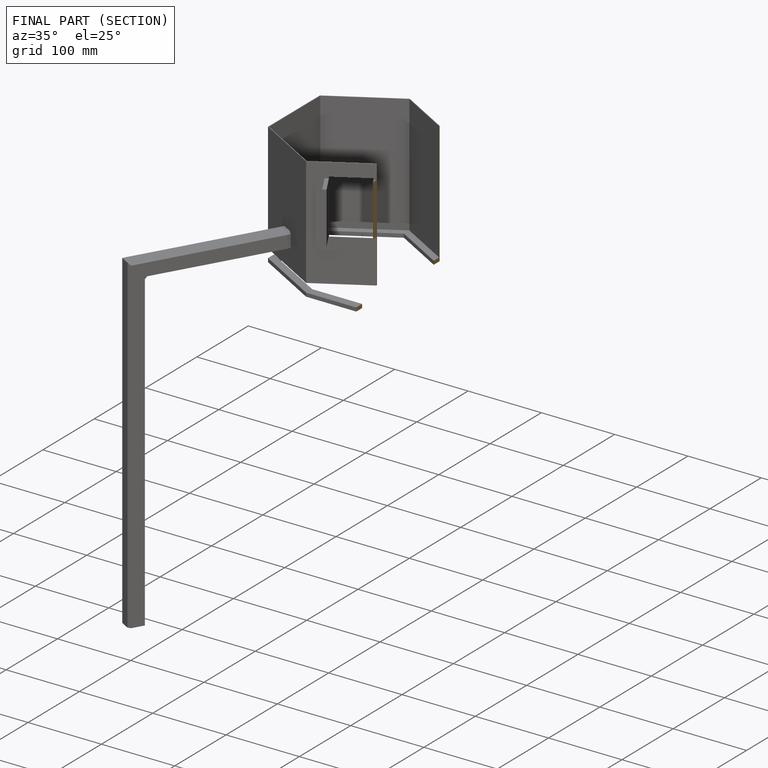
[diagram: finished part — half-section view (interior)]
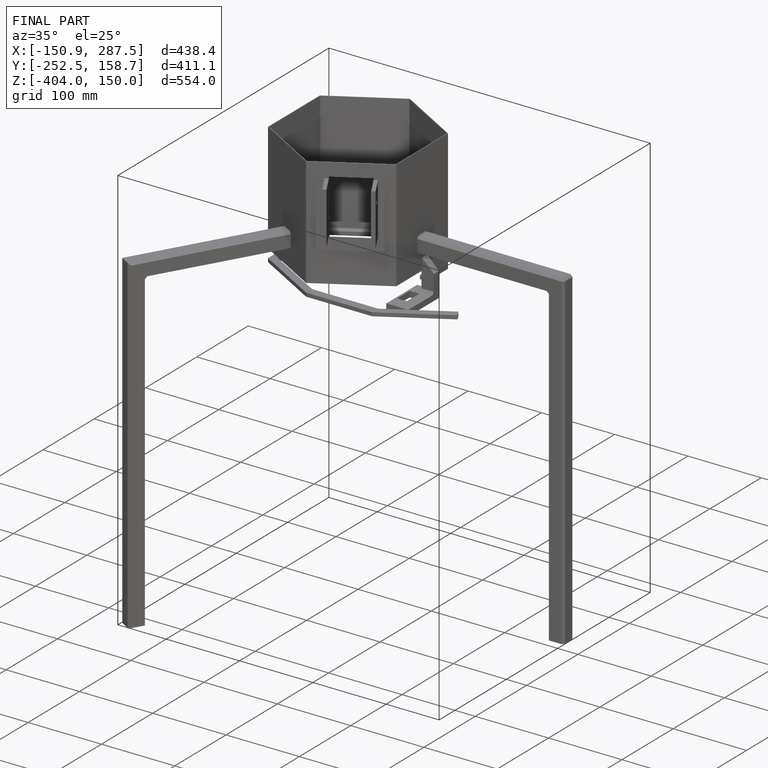
[diagram: finished part — iso view with bounding-box wireframe]
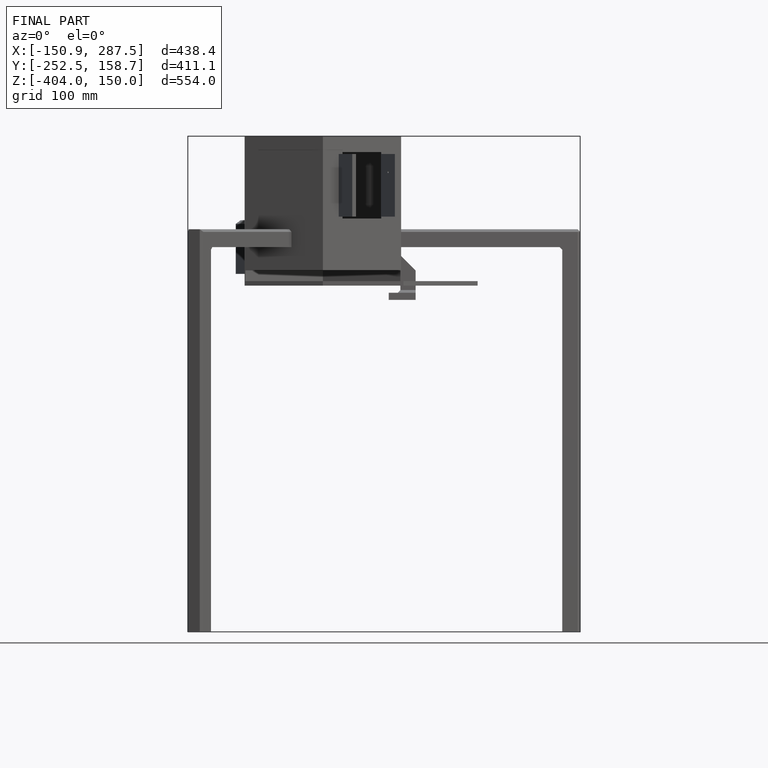
[diagram: finished part — front view with bounding-box wireframe]
